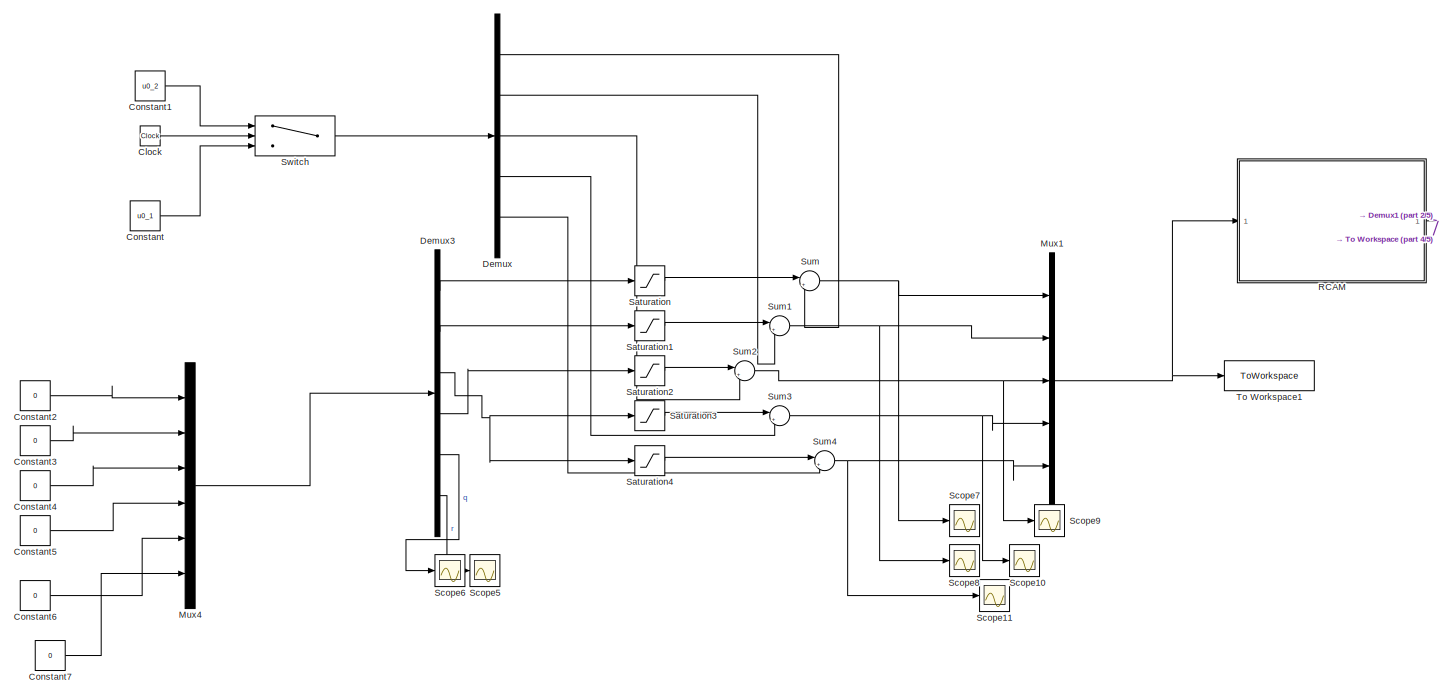
[diagram: root canvas - part 1/5, top left region]
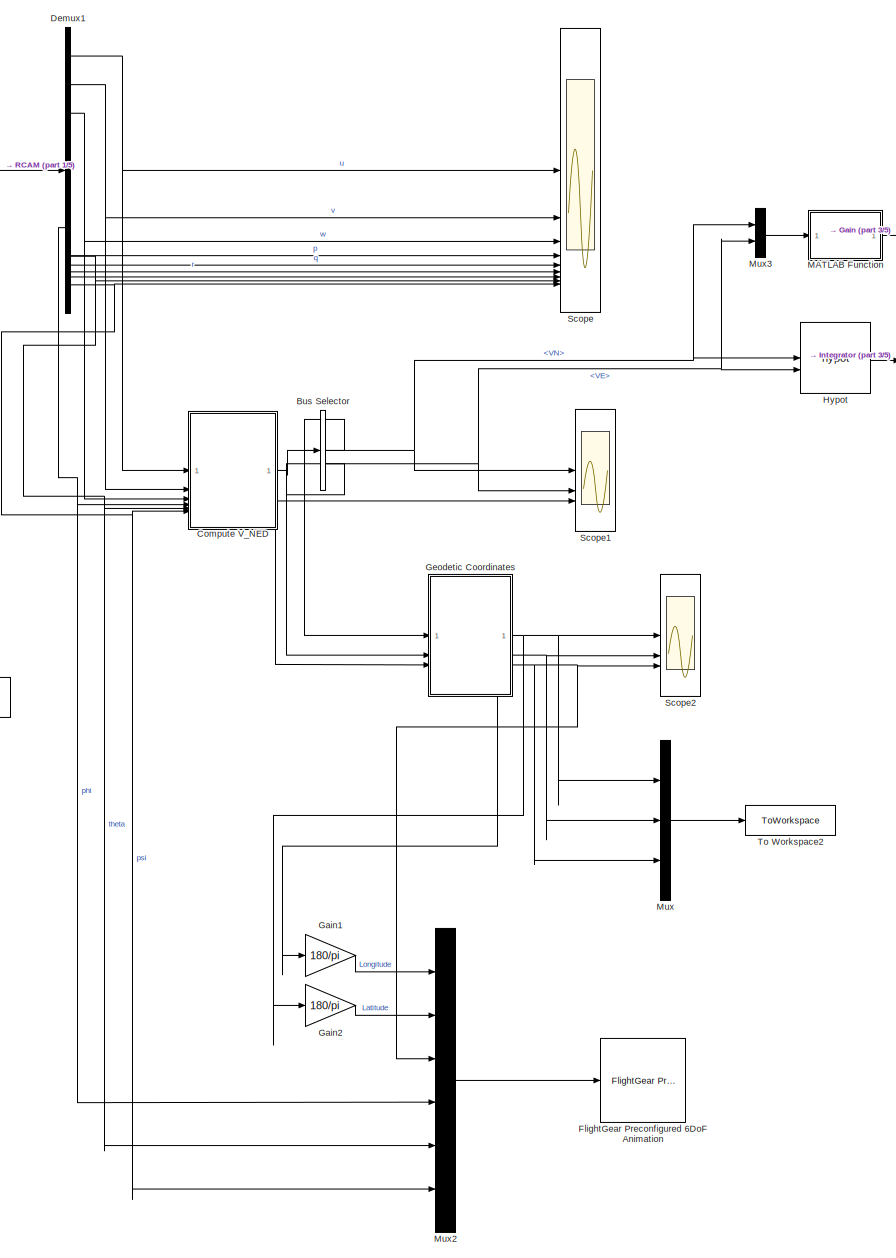
[diagram: root canvas - part 2/5, right side, full height]
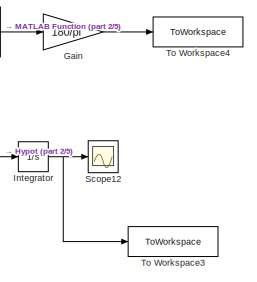
[diagram: root canvas - part 3/5, top right region]
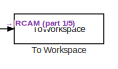
[diagram: root canvas - part 4/5, top center region]
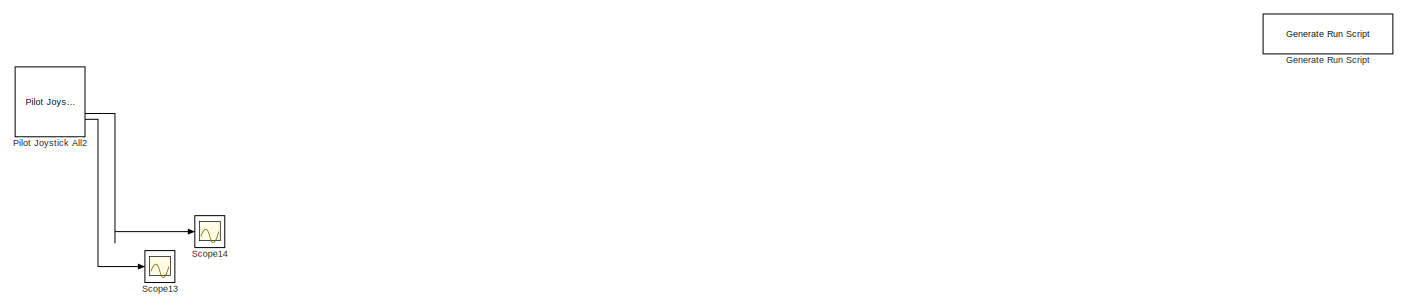
[diagram: root canvas - part 5/5, central region]
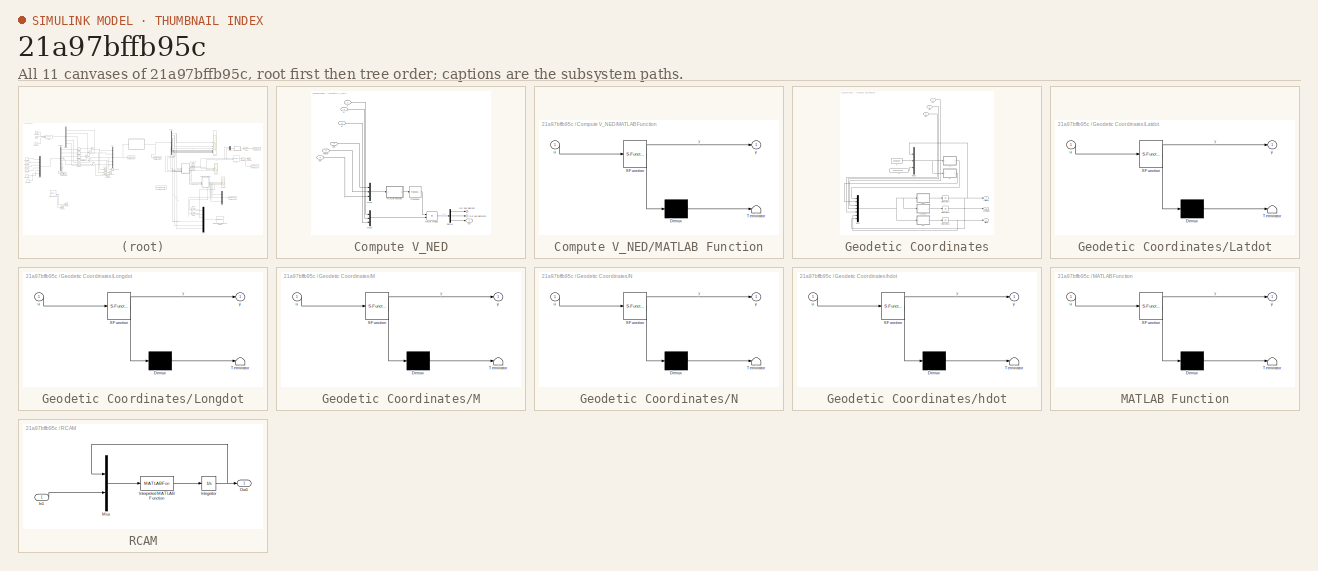
[diagram: thumbnail index - all 11 canvases of the model, root first then tree order]
MODEL slx_21a97bffb95c
KIND model
CONFIG AbsTol = auto
CONFIG EnableMultiTasking = off
CONFIG FixedStep = auto
CONFIG MaxStep = auto
CONFIG MinStep = auto
CONFIG RelTol = 1e-3
CONFIG SampleTimeConstraint = Unconstrained
CONFIG SolverName = VariableStepAuto
CONFIG StartTime = 0.0
CONFIG StopTime = TF
BLOCK [BusSelector] Bus Selector
  OutputSignals = VN,VE
BLOCK [Clock] Clock
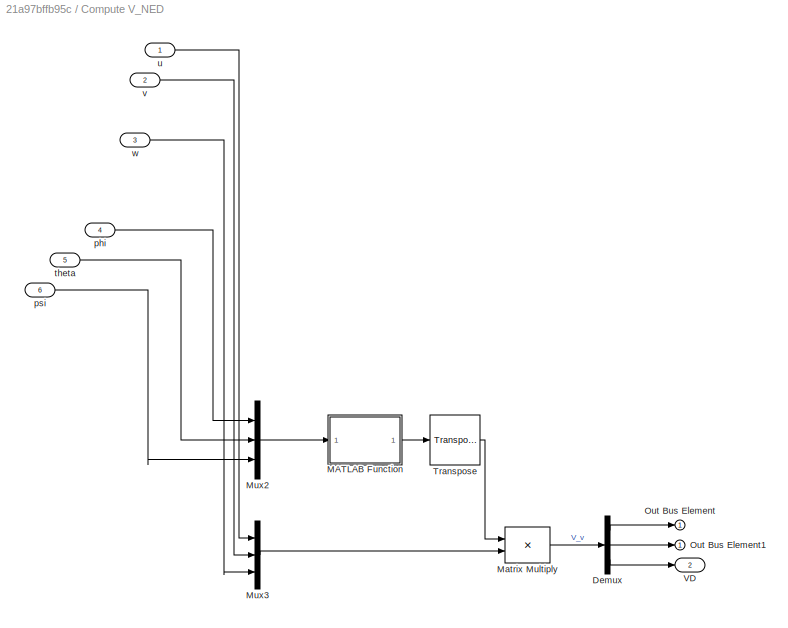
BLOCK [SubSystem] Compute V_NED
BLOCK [Demux] Compute V_NED/Demux
  Outputs = 3
BLOCK [SubSystem] Compute V_NED/MATLAB Function
  ErrorFcn = Stateflow.Translate.translate
  PermitHierarchicalResolution = ExplicitOnly
  SFBlockType = MATLAB Function
  TreatAsAtomicUnit = on
BLOCK [Demux] Compute V_NED/MATLAB Function/ Demux 
  Outputs = 1
BLOCK [S-Function] Compute V_NED/MATLAB Function/ SFunction 
  EnableBusSupport = on
  FunctionName = sf_sfun
  PortCounts = [1 2]
  SFcnIsStateOwnerBlock = off
  SFunctionDeploymentMode = off
  Tag = Stateflow S-Function 2
BLOCK [Terminator] Compute V_NED/MATLAB Function/ Terminator 
BLOCK [Inport] Compute V_NED/MATLAB Function/u
BLOCK [Outport] Compute V_NED/MATLAB Function/y
BLOCK [Product] Compute V_NED/Matrix Multiply
  Multiplication = Matrix(*)
BLOCK [Mux] Compute V_NED/Mux2
  DisplayOption = bar
  Inputs = 3
BLOCK [Mux] Compute V_NED/Mux3
  DisplayOption = bar
  Inputs = 3
BLOCK [Outport] Compute V_NED/Out Bus Element
BLOCK [Outport] Compute V_NED/Out Bus Element1
BLOCK [Reference] Compute V_NED/Transpose  REF=matrix_library/Transpose
  SourceBlock = matrix_library/Transpose
  SourceType = Transpose
BLOCK [Outport] Compute V_NED/VD
  Port = 2
BLOCK [Inport] Compute V_NED/phi
  Port = 4
BLOCK [Inport] Compute V_NED/psi
  Port = 6
BLOCK [Inport] Compute V_NED/theta
  Port = 5
BLOCK [Inport] Compute V_NED/u
BLOCK [Inport] Compute V_NED/v
  Port = 2
BLOCK [Inport] Compute V_NED/w
  Port = 3
BLOCK [Constant] Constant
  Value = u0_1
BLOCK [Constant] Constant1
  Value = u0_2
BLOCK [Constant] Constant2
  Value = 0
BLOCK [Constant] Constant3
  Value = 0
BLOCK [Constant] Constant4
  Value = 0
BLOCK [Constant] Constant5
  Value = 0
BLOCK [Constant] Constant6
  Value = 0
BLOCK [Constant] Constant7
  Value = 0
BLOCK [Demux] Demux
  Outputs = 5
BLOCK [Demux] Demux1
  Outputs = 9
BLOCK [Demux] Demux3
  Outputs = 6
BLOCK [Reference] FlightGear Preconfigured 6DoF Animation  REF=aerolibfltsims/FlightGear
Preconfigured
6DoF Animation
  SourceBlock = aerolibfltsims/FlightGear\nPreconfigured\n6DoF Animation
  SourceType = FlightGearQuick6DoFAnimation
BLOCK [Gain] Gain
  Gain = 180/pi
BLOCK [Gain] Gain1
  Gain = 180/pi
BLOCK [Gain] Gain2
  Gain = 180/pi
BLOCK [Reference] Generate Run Script  REF=aerolibfltsims/Generate
Run Script
  SourceBlock = aerolibfltsims/Generate\nRun Script
  SourceType = Generate FlightGear Run Script
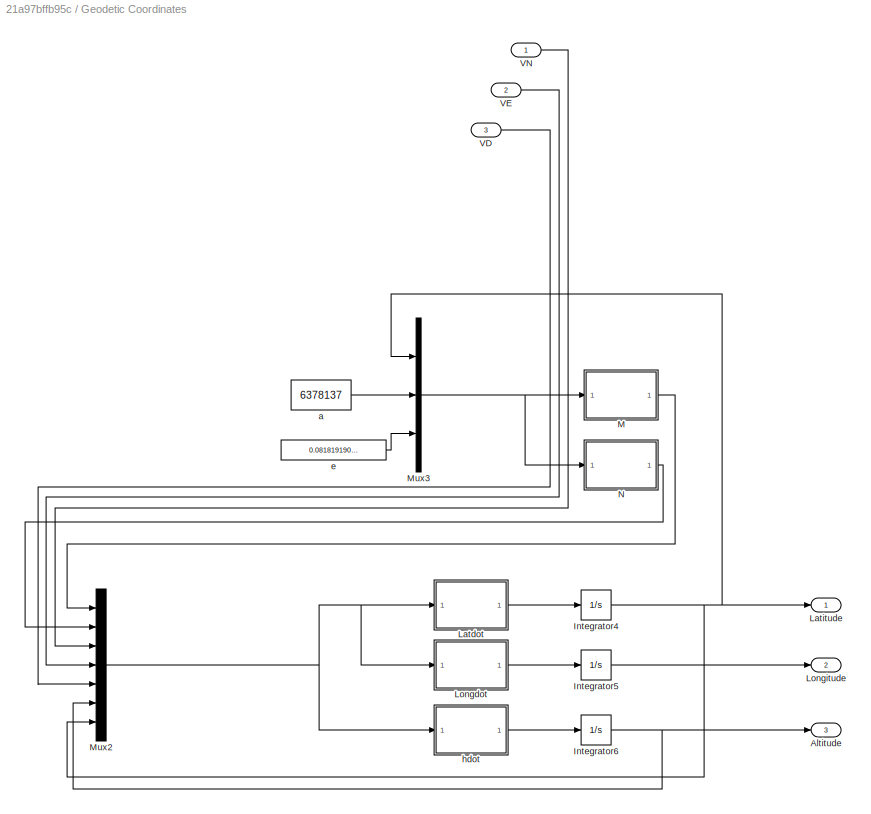
BLOCK [SubSystem] Geodetic Coordinates
BLOCK [Outport] Geodetic Coordinates/Altitude
  Port = 3
BLOCK [Integrator] Geodetic Coordinates/Integrator4
  InitialCondition = lat0
BLOCK [Integrator] Geodetic Coordinates/Integrator5
  InitialCondition = lon0
BLOCK [Integrator] Geodetic Coordinates/Integrator6
  InitialCondition = h0
BLOCK [SubSystem] Geodetic Coordinates/Latdot
  ErrorFcn = Stateflow.Translate.translate
  PermitHierarchicalResolution = ExplicitOnly
  SFBlockType = MATLAB Function
  TreatAsAtomicUnit = on
BLOCK [Demux] Geodetic Coordinates/Latdot/ Demux 
  Outputs = 1
BLOCK [S-Function] Geodetic Coordinates/Latdot/ SFunction 
  EnableBusSupport = on
  FunctionName = sf_sfun
  PortCounts = [1 2]
  SFcnIsStateOwnerBlock = off
  SFunctionDeploymentMode = off
  Tag = Stateflow S-Function 4
BLOCK [Terminator] Geodetic Coordinates/Latdot/ Terminator 
BLOCK [Inport] Geodetic Coordinates/Latdot/u
BLOCK [Outport] Geodetic Coordinates/Latdot/y
BLOCK [Outport] Geodetic Coordinates/Latitude
BLOCK [SubSystem] Geodetic Coordinates/Longdot
  ErrorFcn = Stateflow.Translate.translate
  PermitHierarchicalResolution = ExplicitOnly
  SFBlockType = MATLAB Function
  TreatAsAtomicUnit = on
BLOCK [Demux] Geodetic Coordinates/Longdot/ Demux 
  Outputs = 1
BLOCK [S-Function] Geodetic Coordinates/Longdot/ SFunction 
  EnableBusSupport = on
  FunctionName = sf_sfun
  PortCounts = [1 2]
  SFcnIsStateOwnerBlock = off
  SFunctionDeploymentMode = off
  Tag = Stateflow S-Function 5
BLOCK [Terminator] Geodetic Coordinates/Longdot/ Terminator 
BLOCK [Inport] Geodetic Coordinates/Longdot/u
BLOCK [Outport] Geodetic Coordinates/Longdot/y
BLOCK [Outport] Geodetic Coordinates/Longitude
  Port = 2
BLOCK [SubSystem] Geodetic Coordinates/M
  ErrorFcn = Stateflow.Translate.translate
  PermitHierarchicalResolution = ExplicitOnly
  SFBlockType = MATLAB Function
  TreatAsAtomicUnit = on
BLOCK [Demux] Geodetic Coordinates/M/ Demux 
  Outputs = 1
BLOCK [S-Function] Geodetic Coordinates/M/ SFunction 
  EnableBusSupport = on
  FunctionName = sf_sfun
  PortCounts = [1 2]
  SFcnIsStateOwnerBlock = off
  SFunctionDeploymentMode = off
  Tag = Stateflow S-Function 1
BLOCK [Terminator] Geodetic Coordinates/M/ Terminator 
BLOCK [Inport] Geodetic Coordinates/M/u
BLOCK [Outport] Geodetic Coordinates/M/y
BLOCK [Mux] Geodetic Coordinates/Mux2
  DisplayOption = bar
  Inputs = 7
BLOCK [Mux] Geodetic Coordinates/Mux3
  DisplayOption = bar
  Inputs = 3
BLOCK [SubSystem] Geodetic Coordinates/N
  ErrorFcn = Stateflow.Translate.translate
  PermitHierarchicalResolution = ExplicitOnly
  SFBlockType = MATLAB Function
  TreatAsAtomicUnit = on
BLOCK [Demux] Geodetic Coordinates/N/ Demux 
  Outputs = 1
BLOCK [S-Function] Geodetic Coordinates/N/ SFunction 
  EnableBusSupport = on
  FunctionName = sf_sfun
  PortCounts = [1 2]
  SFcnIsStateOwnerBlock = off
  SFunctionDeploymentMode = off
  Tag = Stateflow S-Function 3
BLOCK [Terminator] Geodetic Coordinates/N/ Terminator 
BLOCK [Inport] Geodetic Coordinates/N/u
BLOCK [Outport] Geodetic Coordinates/N/y
BLOCK [Inport] Geodetic Coordinates/VD
  Port = 3
BLOCK [Inport] Geodetic Coordinates/VE
  Port = 2
BLOCK [Inport] Geodetic Coordinates/VN
BLOCK [Constant] Geodetic Coordinates/a
  Value = 6378137
BLOCK [Constant] Geodetic Coordinates/e
  Value = 0.081819190842622
BLOCK [SubSystem] Geodetic Coordinates/hdot
  ErrorFcn = Stateflow.Translate.translate
  PermitHierarchicalResolution = ExplicitOnly
  SFBlockType = MATLAB Function
  TreatAsAtomicUnit = on
BLOCK [Demux] Geodetic Coordinates/hdot/ Demux 
  Outputs = 1
BLOCK [S-Function] Geodetic Coordinates/hdot/ SFunction 
  EnableBusSupport = on
  FunctionName = sf_sfun
  PortCounts = [1 2]
  SFcnIsStateOwnerBlock = off
  SFunctionDeploymentMode = off
  Tag = Stateflow S-Function 6
BLOCK [Terminator] Geodetic Coordinates/hdot/ Terminator 
BLOCK [Inport] Geodetic Coordinates/hdot/u
BLOCK [Outport] Geodetic Coordinates/hdot/y
BLOCK [Math] Hypot
  Operator = hypot
BLOCK [Integrator] Integrator
BLOCK [SubSystem] MATLAB Function
  ErrorFcn = Stateflow.Translate.translate
  PermitHierarchicalResolution = ExplicitOnly
  SFBlockType = MATLAB Function
  TreatAsAtomicUnit = on
BLOCK [Demux] MATLAB Function/ Demux 
  Outputs = 1
BLOCK [S-Function] MATLAB Function/ SFunction 
  EnableBusSupport = on
  FunctionName = sf_sfun
  PortCounts = [1 2]
  SFcnIsStateOwnerBlock = off
  SFunctionDeploymentMode = off
  Tag = Stateflow S-Function 7
BLOCK [Terminator] MATLAB Function/ Terminator 
BLOCK [Inport] MATLAB Function/u
BLOCK [Outport] MATLAB Function/y
BLOCK [Mux] Mux
  DisplayOption = bar
  Inputs = 3
BLOCK [Mux] Mux1
  DisplayOption = bar
  Inputs = 5
BLOCK [Mux] Mux2
  DisplayOption = bar
  Inputs = 6
BLOCK [Mux] Mux3
  DisplayOption = bar
  Inputs = 2
BLOCK [Mux] Mux4
  DisplayOption = bar
  Inputs = 6
BLOCK [Reference] Pilot Joystick All2  REF=aerolibanimutils/Pilot Joystick
  Commented = on
  SourceBlock = aerolibanimutils/Pilot Joystick
  SourceType = PilotJoystick
BLOCK [SubSystem] RCAM
BLOCK [Inport] RCAM/In1
BLOCK [Integrator] RCAM/Integrator
  InitialCondition = x0
BLOCK [MATLABFcn] RCAM/Interpreted MATLAB Function
  MATLABFcn = RCAM_Model(u(1:9),u(10:14))
BLOCK [Mux] RCAM/Mux
  DisplayOption = bar
  Inputs = 2
BLOCK [Outport] RCAM/Out1
BLOCK [Saturate] Saturation
  LowerLimit = -0.1
  UpperLimit = 0.1
BLOCK [Saturate] Saturation1
  LowerLimit = -0.1
  UpperLimit = 0.1
BLOCK [Saturate] Saturation2
  LowerLimit = -0.1
  UpperLimit = 0.1
BLOCK [Saturate] Saturation3
  LowerLimit = -0.1
  UpperLimit = 0.1
BLOCK [Saturate] Saturation4
  LowerLimit = -0.1
  UpperLimit = 0.1
BLOCK [Scope] Scope
  Floating = off
  NameLocation = right
  NumInputPorts = 9
  ScopeSpecificationString = Simulink.scopes.TimeScopeBlockCfg('CurrentConfiguration', extmgr.ConfigurationSet(extmgr.Configuration('Core','General UI',true),extmgr.Configuration('Core','Source UI',true),extmgr.Configuration('Sources','WiredSimulink',true),extmgr.Configuration('Visuals','Time Domain',true,'SerializedDisplays',{struct('MinYLimReal','-67.25201','MaxYLimReal','260.31849','YLabelReal','','MinYLimMag','0.00000','M...<+1521ch>
BLOCK [Scope] Scope1
  Floating = off
  NumInputPorts = 3
  ScopeSpecificationString = Simulink.scopes.TimeScopeBlockCfg('CurrentConfiguration', extmgr.ConfigurationSet(extmgr.Configuration('Core','General UI',true),extmgr.Configuration('Core','Source UI',true),extmgr.Configuration('Sources','WiredSimulink',true,'DataLoggingVariableName','ScopeData1'),extmgr.Configuration('Visuals','Time Domain',true,'SerializedDisplays',{struct('MinYLimReal','-108.28918','MaxYLimReal','114.89363','...<+1402ch>
BLOCK [Scope] Scope10
  Floating = off
  NumInputPorts = 1
  ScopeSpecificationString = Simulink.scopes.TimeScopeBlockCfg('CurrentConfiguration', extmgr.ConfigurationSet(extmgr.Configuration('Core','General UI',true),extmgr.Configuration('Core','Source UI',true),extmgr.Configuration('Sources','WiredSimulink',true,'DataLoggingVariableName','ScopeData8'),extmgr.Configuration('Visuals','Time Domain',true,'SerializedDisplays',{struct('MinYLimReal','0.07208','MaxYLimReal','0.09208','YLabe...<+1361ch>
BLOCK [Scope] Scope11
  Floating = off
  NumInputPorts = 1
  ScopeSpecificationString = Simulink.scopes.TimeScopeBlockCfg('CurrentConfiguration', extmgr.ConfigurationSet(extmgr.Configuration('Core','General UI',true),extmgr.Configuration('Core','Source UI',true),extmgr.Configuration('Sources','WiredSimulink',true,'DataLoggingVariableName','ScopeData9'),extmgr.Configuration('Visuals','Time Domain',true,'SerializedDisplays',{struct('MinYLimReal','0.06958','MaxYLimReal','0.19458','YLabe...<+1393ch>
BLOCK [Scope] Scope12
  Floating = off
  NumInputPorts = 1
  ScopeSpecificationString = Simulink.scopes.TimeScopeBlockCfg('CurrentConfiguration', extmgr.ConfigurationSet(extmgr.Configuration('Core','General UI',true),extmgr.Configuration('Core','Source UI',true),extmgr.Configuration('Sources','WiredSimulink',true,'DataLoggingVariableName','ScopeData1'),extmgr.Configuration('Visuals','Time Domain',true,'SerializedDisplays',{struct('MinYLimReal','-3051.58457','MaxYLimReal','27464.26112...<+1395ch>
BLOCK [Scope] Scope13
  Commented = on
  Floating = off
  NumInputPorts = 1
  ScopeSpecificationString = Simulink.scopes.TimeScopeBlockCfg('CurrentConfiguration', extmgr.ConfigurationSet(extmgr.Configuration('Core','General UI',true),extmgr.Configuration('Core','Source UI',true),extmgr.Configuration('Sources','WiredSimulink',true,'DataLoggingVariableName','ScopeData1'),extmgr.Configuration('Visuals','Time Domain',true),extmgr.Configuration('Tools','Plot Navigation',true),extmgr.Configuration('Tools',...<+40ch>
BLOCK [Scope] Scope14
  Commented = on
  Floating = off
  NumInputPorts = 1
  ScopeSpecificationString = Simulink.scopes.TimeScopeBlockCfg('CurrentConfiguration', extmgr.ConfigurationSet(extmgr.Configuration('Core','General UI',true),extmgr.Configuration('Core','Source UI',true),extmgr.Configuration('Sources','WiredSimulink',true,'DataLoggingVariableName','ScopeData2'),extmgr.Configuration('Visuals','Time Domain',true,'SerializedDisplays',{struct('MinYLimReal','-1.00000','MaxYLimReal','1.00000','YLab...<+1380ch>
BLOCK [Scope] Scope2
  Floating = off
  NumInputPorts = 3
  ScopeSpecificationString = Simulink.scopes.TimeScopeBlockCfg('CurrentConfiguration', extmgr.ConfigurationSet(extmgr.Configuration('Core','General UI',true),extmgr.Configuration('Core','Source UI',true),extmgr.Configuration('Sources','WiredSimulink',true,'DataLoggingVariableName','ScopeData1'),extmgr.Configuration('Visuals','Time Domain',true,'SerializedDisplays',{struct('MinYLimReal','-150.87906','MaxYLimReal','1336.54504',...<+1502ch>
BLOCK [Scope] Scope5
  Floating = off
  NumInputPorts = 1
  ScopeSpecificationString = Simulink.scopes.TimeScopeBlockCfg('CurrentConfiguration', extmgr.ConfigurationSet(extmgr.Configuration('Core','General UI',true),extmgr.Configuration('Core','Source UI',true),extmgr.Configuration('Sources','WiredSimulink',true,'DataLoggingVariableName','ScopeData3'),extmgr.Configuration('Visuals','Time Domain',true),extmgr.Configuration('Tools','Plot Navigation',true),extmgr.Configuration('Tools',...<+40ch>
BLOCK [Scope] Scope6
  Floating = off
  NumInputPorts = 1
  ScopeSpecificationString = Simulink.scopes.TimeScopeBlockCfg('CurrentConfiguration', extmgr.ConfigurationSet(extmgr.Configuration('Core','General UI',true),extmgr.Configuration('Core','Source UI',true),extmgr.Configuration('Sources','WiredSimulink',true,'DataLoggingVariableName','ScopeData4'),extmgr.Configuration('Visuals','Time Domain',true),extmgr.Configuration('Tools','Plot Navigation',true),extmgr.Configuration('Tools',...<+40ch>
BLOCK [Scope] Scope7
  Floating = off
  NumInputPorts = 1
  ScopeSpecificationString = Simulink.scopes.TimeScopeBlockCfg('CurrentConfiguration', extmgr.ConfigurationSet(extmgr.Configuration('Core','General UI',true),extmgr.Configuration('Core','Source UI',true),extmgr.Configuration('Sources','WiredSimulink',true,'DataLoggingVariableName','ScopeData5'),extmgr.Configuration('Visuals','Time Domain',true,'SerializedDisplays',{struct('MinYLimReal','-0.125','MaxYLimReal','0.125','YLabelRe...<+1350ch>
BLOCK [Scope] Scope8
  Floating = off
  NumInputPorts = 1
  ScopeSpecificationString = Simulink.scopes.TimeScopeBlockCfg('CurrentConfiguration', extmgr.ConfigurationSet(extmgr.Configuration('Core','General UI',true),extmgr.Configuration('Core','Source UI',true),extmgr.Configuration('Sources','WiredSimulink',true,'DataLoggingVariableName','ScopeData6'),extmgr.Configuration('Visuals','Time Domain',true,'SerializedDisplays',{struct('MinYLimReal','-0.30301','MaxYLimReal','-0.05301','YLa...<+1396ch>
BLOCK [Scope] Scope9
  Floating = off
  NumInputPorts = 1
  ScopeSpecificationString = Simulink.scopes.TimeScopeBlockCfg('CurrentConfiguration', extmgr.ConfigurationSet(extmgr.Configuration('Core','General UI',true),extmgr.Configuration('Core','Source UI',true),extmgr.Configuration('Sources','WiredSimulink',true,'DataLoggingVariableName','ScopeData7'),extmgr.Configuration('Visuals','Time Domain',true,'SerializedDisplays',{struct('MinYLimReal','0.00000000000013','MaxYLimReal','0.0000...<+1433ch>
BLOCK [Sum] Sum
  Inputs = |++
BLOCK [Sum] Sum1
  Inputs = |++
BLOCK [Sum] Sum2
  Inputs = |++
BLOCK [Sum] Sum3
  Inputs = |++
BLOCK [Sum] Sum4
  Inputs = |++
BLOCK [Switch] Switch
  InputSameDT = off
  SaturateOnIntegerOverflow = off
  Threshold = 20
BLOCK [ToWorkspace] To Workspace
  FixptAsFi = on
  MaxDataPoints = inf
  SampleTime = -1
  SaveFormat = Timeseries
  VariableName = simX
BLOCK [ToWorkspace] To Workspace1
  FixptAsFi = on
  MaxDataPoints = inf
  SampleTime = -1
  SaveFormat = Timeseries
  VariableName = simU
BLOCK [ToWorkspace] To Workspace2
  FixptAsFi = on
  MaxDataPoints = inf
  SampleTime = -1
  SaveFormat = Timeseries
  VariableName = simout
BLOCK [ToWorkspace] To Workspace3
  FixptAsFi = on
  MaxDataPoints = inf
  SampleTime = -1
  SaveFormat = Timeseries
  VariableName = simout1
BLOCK [ToWorkspace] To Workspace4
  FixptAsFi = on
  MaxDataPoints = inf
  SampleTime = -1
  SaveFormat = Timeseries
  VariableName = simout2
NET Bus Selector:1 -> Geodetic Coordinates:1, Hypot:1, Mux3:1, Scope1:1
NET Bus Selector:2 -> Geodetic Coordinates:2, Hypot:2, Mux3:2, Scope1:2
LINE Clock:1 -> Switch:2
LINE Compute V_NED/Demux:1 -> Compute V_NED/Out Bus Element:1
LINE Compute V_NED/Demux:2 -> Compute V_NED/Out Bus Element1:1
LINE Compute V_NED/Demux:3 -> Compute V_NED/VD:1
LINE Compute V_NED/MATLAB Function:1 -> Compute V_NED/Transpose:1
LINE Compute V_NED/Matrix Multiply:1 -> Compute V_NED/Demux:1
LINE Compute V_NED/Mux2:1 -> Compute V_NED/MATLAB Function:1
LINE Compute V_NED/Mux3:1 -> Compute V_NED/Matrix Multiply:2
LINE Compute V_NED/Transpose:1 -> Compute V_NED/Matrix Multiply:1
LINE Compute V_NED/phi:1 -> Compute V_NED/Mux2:1
LINE Compute V_NED/psi:1 -> Compute V_NED/Mux2:3
LINE Compute V_NED/theta:1 -> Compute V_NED/Mux2:2
LINE Compute V_NED/u:1 -> Compute V_NED/Mux3:1
LINE Compute V_NED/v:1 -> Compute V_NED/Mux3:2
LINE Compute V_NED/w:1 -> Compute V_NED/Mux3:3
LINE Compute V_NED:1 -> Bus Selector:1
NET Compute V_NED:2 -> Geodetic Coordinates:3, Scope1:3
LINE Constant1:1 -> Switch:1
LINE Constant2:1 -> Mux4:1
LINE Constant3:1 -> Mux4:2
LINE Constant4:1 -> Mux4:3
LINE Constant5:1 -> Mux4:4
LINE Constant6:1 -> Mux4:5
LINE Constant7:1 -> Mux4:6
LINE Constant:1 -> Switch:3
NET Demux1:1 -> Compute V_NED:1, Scope:1
NET Demux1:2 -> Compute V_NED:2, Scope:2
NET Demux1:3 -> Compute V_NED:3, Scope:3
LINE Demux1:4 -> Scope:4
LINE Demux1:5 -> Scope:5
LINE Demux1:6 -> Scope:6
NET Demux1:7 -> Compute V_NED:4, Mux2:4, Scope:7
NET Demux1:8 -> Compute V_NED:5, Mux2:5, Scope:8
NET Demux1:9 -> Compute V_NED:6, Mux2:6, Scope:9
LINE Demux3:1 -> Saturation:1
LINE Demux3:2 -> Saturation1:1
NET Demux3:3 -> Saturation3:1, Saturation4:1
LINE Demux3:4 -> Saturation2:1
LINE Demux3:5 -> Scope6:1
LINE Demux3:6 -> Scope5:1
LINE Demux:1 -> Sum:2
LINE Demux:2 -> Sum1:2
LINE Demux:3 -> Sum2:2
LINE Demux:4 -> Sum3:2
LINE Demux:5 -> Sum4:2
LINE Gain1:1 -> Mux2:1
LINE Gain2:1 -> Mux2:2
LINE Gain:1 -> To Workspace4:1
NET Geodetic Coordinates/Integrator4:1 -> Geodetic Coordinates/Latitude:1, Geodetic Coordinates/Mux2:7, Geodetic Coordinates/Mux3:1
LINE Geodetic Coordinates/Integrator5:1 -> Geodetic Coordinates/Longitude:1
NET Geodetic Coordinates/Integrator6:1 -> Geodetic Coordinates/Altitude:1, Geodetic Coordinates/Mux2:6
LINE Geodetic Coordinates/Latdot:1 -> Geodetic Coordinates/Integrator4:1
LINE Geodetic Coordinates/Longdot:1 -> Geodetic Coordinates/Integrator5:1
LINE Geodetic Coordinates/M:1 -> Geodetic Coordinates/Mux2:1
NET Geodetic Coordinates/Mux2:1 -> Geodetic Coordinates/Latdot:1, Geodetic Coordinates/Longdot:1, Geodetic Coordinates/hdot:1
NET Geodetic Coordinates/Mux3:1 -> Geodetic Coordinates/M:1, Geodetic Coordinates/N:1
LINE Geodetic Coordinates/N:1 -> Geodetic Coordinates/Mux2:2
LINE Geodetic Coordinates/VD:1 -> Geodetic Coordinates/Mux2:5
LINE Geodetic Coordinates/VE:1 -> Geodetic Coordinates/Mux2:4
LINE Geodetic Coordinates/VN:1 -> Geodetic Coordinates/Mux2:3
LINE Geodetic Coordinates/a:1 -> Geodetic Coordinates/Mux3:2
LINE Geodetic Coordinates/e:1 -> Geodetic Coordinates/Mux3:3
LINE Geodetic Coordinates/hdot:1 -> Geodetic Coordinates/Integrator6:1
NET Geodetic Coordinates:1 -> Gain2:1, Mux:1, Scope2:1
NET Geodetic Coordinates:2 -> Gain1:1, Mux:2, Scope2:2
NET Geodetic Coordinates:3 -> Mux2:3, Mux:3, Scope2:3
LINE Hypot:1 -> Integrator:1
NET Integrator:1 -> Scope12:1, To Workspace3:1
LINE MATLAB Function:1 -> Gain:1
NET Mux1:1 -> RCAM:1, To Workspace1:1
LINE Mux2:1 -> FlightGear Preconfigured 6DoF Animation:1
LINE Mux3:1 -> MATLAB Function:1
LINE Mux4:1 -> Demux3:1
LINE Mux:1 -> To Workspace2:1
LINE Pilot Joystick All2:2 -> Scope14:1
LINE Pilot Joystick All2:3 -> Scope13:1
LINE RCAM/In1:1 -> RCAM/Mux:2
NET RCAM/Integrator:1 -> RCAM/Mux:1, RCAM/Out1:1
LINE RCAM/Interpreted MATLAB Function:1 -> RCAM/Integrator:1
LINE RCAM/Mux:1 -> RCAM/Interpreted MATLAB Function:1
NET RCAM:1 -> Demux1:1, To Workspace:1
LINE Saturation1:1 -> Sum1:1
LINE Saturation2:1 -> Sum2:1
LINE Saturation3:1 -> Sum3:1
LINE Saturation4:1 -> Sum4:1
LINE Saturation:1 -> Sum:1
NET Sum1:1 -> Mux1:2, Scope8:1
NET Sum2:1 -> Mux1:3, Scope9:1
NET Sum3:1 -> Mux1:4, Scope10:1
NET Sum4:1 -> Mux1:5, Scope11:1
NET Sum:1 -> Mux1:1, Scope7:1
LINE Switch:1 -> Demux:1
note: NET lines group one-source signal fan-out (src -> all destinations, sorted); 1:1 wires keep LINE
CHART Compute V_NED/MATLAB Function states=1 transitions=1
  STATE_LABEL 'eML_blk_kernel()'
  STATE_LABEL 'SCRIPT:\nfunction y = fcn(u)\nphi = u(1);\ntheta = u(2);\npsi = u(3);\n\nC1v = [cos(psi) sin(psi) 0; -sin(psi) cos(psi) 0; 0 0 1];\nC21 = [cos(theta) 0 -sin(theta); 0 1 0; sin(theta) 0 cos(theta)];\nCb2 = [1 0 0; 0 cos(phi) sin(phi); 0 -sin(phi) cos(phi)];\n\ny = Cb2 * C21 * C1v;\n\n'
CHART Geodetic Coordinates/N states=1 transitions=1
  STATE_LABEL 'eML_blk_kernel()'
  STATE_LABEL 'SCRIPT:\nfunction y = fcn(u)\nLatitude = u(1);\na = u(2);\ne = u(3);\n\nN = a/ (1 - e^2 * sin(Latitude)^2)^(1/2);\ny = N;'
CHART Geodetic Coordinates/Latdot states=1 transitions=1
  STATE_LABEL 'eML_blk_kernel()'
  STATE_LABEL 'SCRIPT:\nfunction y = fcn(u)\nM = u(1);\nN = u(2);\nVN = u(3);\nVE = u(4);\nVD = u(5);\nh = u(6);\nLatitude = u(7);\n\nLatdot = VN/(M+h);\ny = Latdot;\n'
CHART Geodetic Coordinates/Longdot states=1 transitions=1
  STATE_LABEL 'eML_blk_kernel()'
  STATE_LABEL 'SCRIPT:\nfunction y = fcn(u)\nM = u(1);\nN = u(2);\nVN = u(3);\nVE = u(4);\nVD = u(5);\nh = u(6);\nLatitude = u(7);\n\nLongdot = VE/ ((N + h) * cos(Latitude));\ny = Longdot;\n'
CHART Geodetic Coordinates/hdot states=1 transitions=1
  STATE_LABEL 'eML_blk_kernel()'
  STATE_LABEL 'SCRIPT:\nfunction y = fcn(u)\nM = u(1);\nN = u(2);\nVN = u(3);\nVE = u(4);\nVD = u(5);\nh = u(6);\nLatitude = u(7);\n\nhdot = -VD;\ny = hdot;'
CHART MATLAB Function states=1 transitions=1
  STATE_LABEL 'eML_blk_kernel()'
  STATE_LABEL 'SCRIPT:\nfunction y = fcn(u)\nvN = u(1);\nvE = u(2);\n\nz = (3*pi/2)+ mod(atan2(vN,vE),2*pi);\ny = 2*pi - z;\n'
CHART Geodetic Coordinates/M states=1 transitions=1
  STATE_LABEL 'eML_blk_kernel()'
  STATE_LABEL 'SCRIPT:\nfunction y = fcn(u)\nLatitude = u(1);\na = u(2);\ne = u(3);\n\nM = a * (1  - e^2)/(1 - e^2 * sin(Latitude)^2)^(3/2);\ny = M;\n\n'
CHART  states=0 transitions=0
CHART  states=0 transitions=0
CHART  states=0 transitions=0
CHART  states=0 transitions=0
CHART  states=0 transitions=0
CHART  states=0 transitions=0
CHART  states=0 transitions=0
